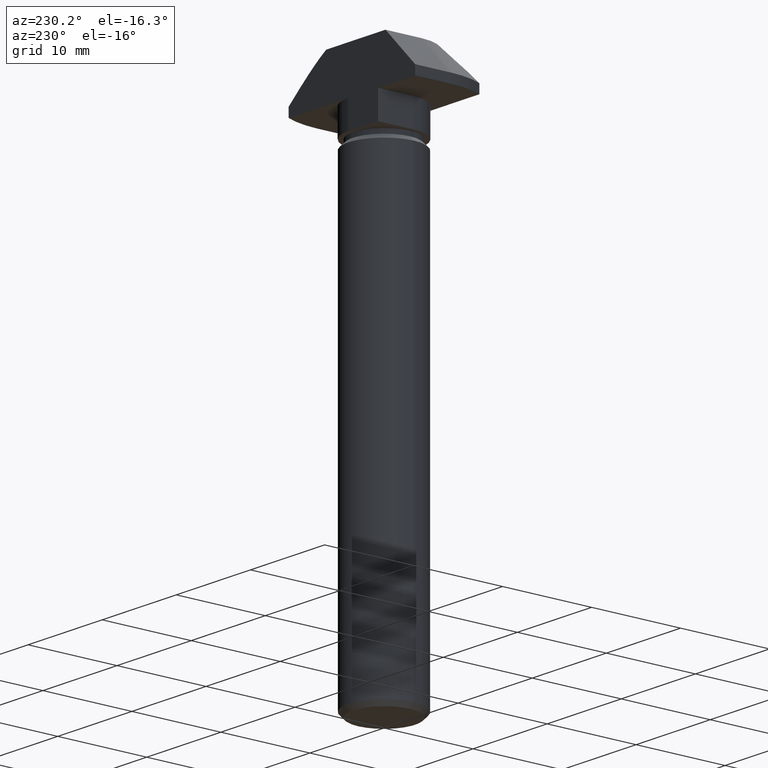
[diagram: clean part render]
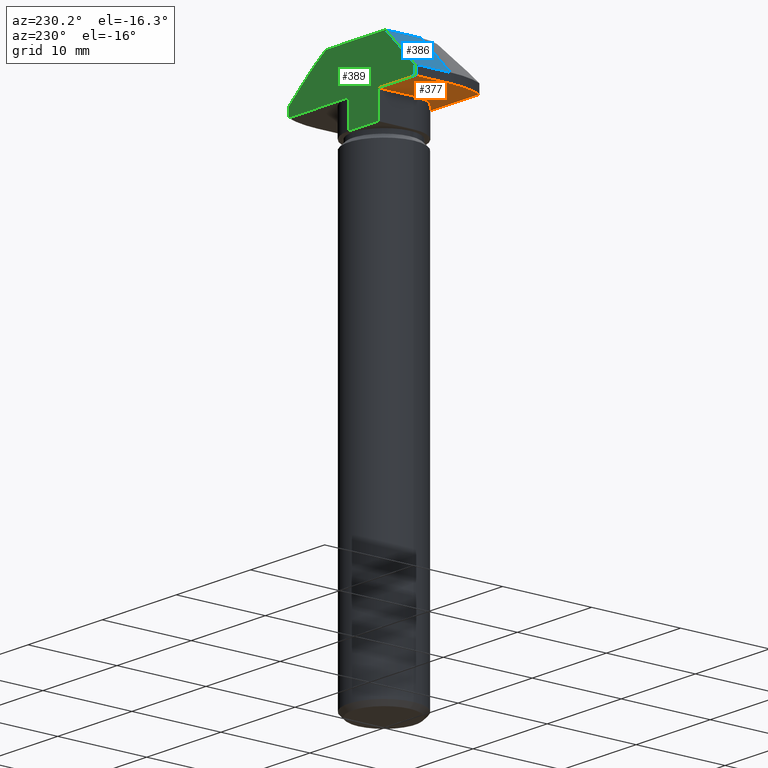
[diagram: same view with three faces highlighted in distinct colors, each labeled with its STEP entity id]
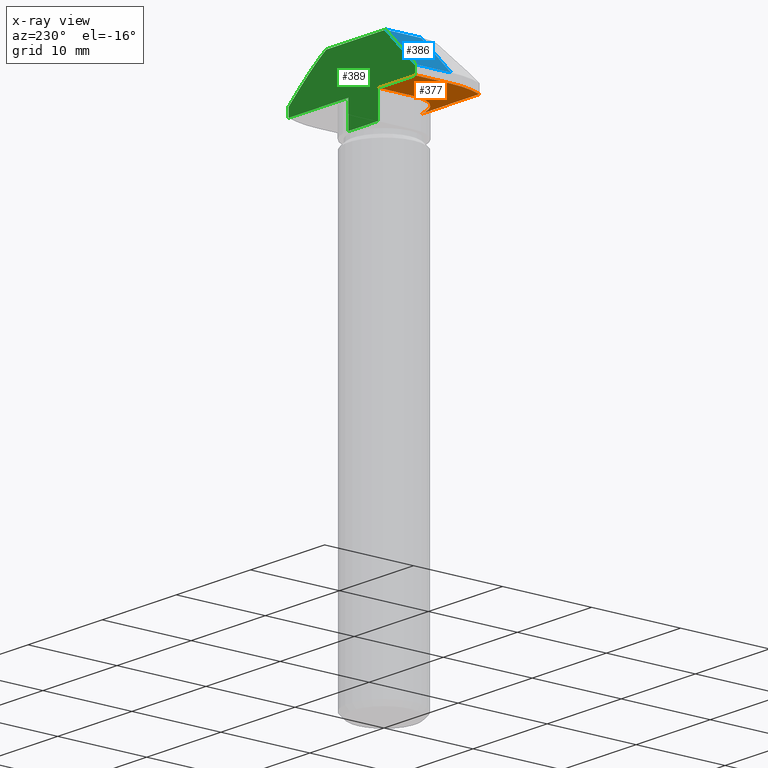
[diagram: x-ray of the same camera — body ghosted, the three highlighted faces saturated]
A machine part, auxiliary view with three faces highlighted in distinct colors.
The next image is the same camera in x-ray (body ghosted, the three faces saturated) — at least one of them is partly hidden behind the body in this view.
Their STEP definitions:

[orange] entity #377 — the highlighted planar face has unit normal (0, 0, -1).
#17=LINE('',#561,#51);
#29=LINE('',#593,#63);
#30=LINE('',#597,#64);
#31=LINE('',#598,#65);
#51=VECTOR('',#454,3.99999999999999);
#63=VECTOR('',#484,8.06225774829855);
#64=VECTOR('',#487,4.);
#65=VECTOR('',#488,5.00000000000001);
#89=PLANE('',#411);
#119=FACE_OUTER_BOUND('',#147,.T.);
#147=EDGE_LOOP('',(#293,#294,#295,#296,#297,#298));
#165=CIRCLE('',#404,4.00000000000001);
#169=CIRCLE('',#412,9.);
#180=VERTEX_POINT('',#559);
#181=VERTEX_POINT('',#560);
#184=VERTEX_POINT('',#568);
#192=VERTEX_POINT('',#592);
#193=VERTEX_POINT('',#594);
#194=VERTEX_POINT('',#596);
#215=EDGE_CURVE('',#180,#181,#17,.T.);
#219=EDGE_CURVE('',#181,#184,#165,.T.);
#231=EDGE_CURVE('',#192,#184,#29,.T.);
#232=EDGE_CURVE('',#192,#193,#169,.T.);
#233=EDGE_CURVE('',#193,#194,#30,.T.);
#234=EDGE_CURVE('',#180,#194,#31,.T.);
#293=ORIENTED_EDGE('',*,*,#219,.T.);
#294=ORIENTED_EDGE('',*,*,#231,.F.);
#295=ORIENTED_EDGE('',*,*,#232,.T.);
#296=ORIENTED_EDGE('',*,*,#233,.T.);
#297=ORIENTED_EDGE('',*,*,#234,.F.);
#298=ORIENTED_EDGE('',*,*,#215,.T.);
#377=ADVANCED_FACE('',(#119),#89,.T.);
#404=AXIS2_PLACEMENT_3D('',#569,#460,#461);
#411=AXIS2_PLACEMENT_3D('',#591,#482,#483);
#412=AXIS2_PLACEMENT_3D('',#595,#485,#486);
#454=DIRECTION('',(0.,-1.,0.));
#460=DIRECTION('center_axis',(0.,0.,1.));
#461=DIRECTION('ref_axis',(2.7755575615629E-16,1.,0.));
#482=DIRECTION('center_axis',(0.,0.,-1.));
#483=DIRECTION('ref_axis',(-1.,0.,0.));
#484=DIRECTION('',(1.,0.,0.));
#485=DIRECTION('center_axis',(0.,0.,-1.));
#486=DIRECTION('ref_axis',(-1.,0.,0.));
#487=DIRECTION('',(0.,1.,0.));
#488=DIRECTION('',(-1.,0.,0.));
#559=CARTESIAN_POINT('',(-3.99999999999999,3.99999999999998,-5.));
#560=CARTESIAN_POINT('',(-3.99999999999999,-1.4432899320127E-14,-5.));
#561=CARTESIAN_POINT('',(-3.99999999999999,-7.21644966006352E-15,-5.));
#568=CARTESIAN_POINT('',(0.,-4.00000000000001,-5.));
#569=CARTESIAN_POINT('Origin',(1.11022302462516E-15,-1.33226762955019E-14,
-5.));
#591=CARTESIAN_POINT('Origin',(9.,0.,-5.));
#592=CARTESIAN_POINT('',(-8.06225774829855,-4.,-5.));
#593=CARTESIAN_POINT('',(-9.,-4.,-5.));
#594=CARTESIAN_POINT('',(-9.,0.,-5.));
#595=CARTESIAN_POINT('Origin',(0.,0.,-5.));
#596=CARTESIAN_POINT('',(-9.,4.,-5.));
#597=CARTESIAN_POINT('',(-9.,0.,-5.));
#598=CARTESIAN_POINT('',(-9.,4.,-5.));

[blue] entity #386 — the highlighted planar face has unit normal (-0.7071, 0, 0.7071).
#40=LINE('',#634,#74);
#45=LINE('',#645,#79);
#47=LINE('',#649,#81);
#48=LINE('',#650,#82);
#74=VECTOR('',#517,5.65685424949238);
#79=VECTOR('',#528,4.);
#81=VECTOR('',#532,4.);
#82=VECTOR('',#533,5.65685424949238);
#94=PLANE('',#426);
#128=FACE_OUTER_BOUND('',#156,.T.);
#156=EDGE_LOOP('',(#333,#334,#335,#336));
#203=VERTEX_POINT('',#624);
#205=VERTEX_POINT('',#632);
#208=VERTEX_POINT('',#644);
#209=VERTEX_POINT('',#648);
#250=EDGE_CURVE('',#205,#203,#40,.T.);
#255=EDGE_CURVE('',#208,#203,#45,.T.);
#257=EDGE_CURVE('',#209,#205,#47,.T.);
#258=EDGE_CURVE('',#208,#209,#48,.T.);
#333=ORIENTED_EDGE('',*,*,#250,.F.);
#334=ORIENTED_EDGE('',*,*,#257,.F.);
#335=ORIENTED_EDGE('',*,*,#258,.F.);
#336=ORIENTED_EDGE('',*,*,#255,.T.);
#386=ADVANCED_FACE('',(#128),#94,.T.);
#426=AXIS2_PLACEMENT_3D('',#647,#530,#531);
#517=DIRECTION('',(-0.707106781186547,0.,-0.707106781186547));
#528=DIRECTION('',(0.,-1.,0.));
#530=DIRECTION('center_axis',(-0.707106781186548,0.,0.707106781186548));
#531=DIRECTION('ref_axis',(0.707106781186548,0.,0.707106781186548));
#532=DIRECTION('',(0.,-1.,0.));
#533=DIRECTION('',(0.707106781186548,0.,0.707106781186548));
#624=CARTESIAN_POINT('',(-9.,0.,-4.));
#632=CARTESIAN_POINT('',(-5.,0.,0.));
#634=CARTESIAN_POINT('',(-7.,0.,-2.));
#644=CARTESIAN_POINT('',(-9.,4.,-4.));
#645=CARTESIAN_POINT('',(-9.,0.,-4.));
#647=CARTESIAN_POINT('Origin',(-9.,0.,-4.));
#648=CARTESIAN_POINT('',(-5.,4.,0.));
#649=CARTESIAN_POINT('',(-5.,0.,4.00551059515339E-16));
#650=CARTESIAN_POINT('',(-5.,4.,4.00551059515339E-16));

[green] entity #389 — the highlighted planar face has unit normal (0, 1, 0).
#15=(
BOUNDED_CURVE()
B_SPLINE_CURVE(2,(#610,#611,#612),.UNSPECIFIED.,.F.,.F.)
B_SPLINE_CURVE_WITH_KNOTS((3,3),(0.,0.645810133031387),.UNSPECIFIED.)
CURVE()
GEOMETRIC_REPRESENTATION_ITEM()
RATIONAL_B_SPLINE_CURVE((1.,1.07257323111151,1.))
REPRESENTATION_ITEM('')
);
#18=LINE('',#563,#52);
#26=LINE('',#587,#60);
#27=LINE('',#589,#61);
#31=LINE('',#598,#65);
#32=LINE('',#601,#66);
#36=LINE('',#619,#70);
#46=LINE('',#646,#80);
#48=LINE('',#650,#82);
#50=LINE('',#654,#84);
#52=VECTOR('',#455,3.);
#60=VECTOR('',#477,3.);
#61=VECTOR('',#480,3.99999999999999);
#65=VECTOR('',#488,5.00000000000001);
#66=VECTOR('',#491,8.06225774829855);
#70=VECTOR('',#505,1.);
#80=VECTOR('',#529,1.);
#82=VECTOR('',#533,5.65685424949238);
#84=VECTOR('',#539,8.00000000000001);
#97=PLANE('',#429);
#131=FACE_OUTER_BOUND('',#159,.T.);
#159=EDGE_LOOP('',(#353,#354,#355,#356,#357,#358,#359,#360,#361,#362));
#180=VERTEX_POINT('',#559);
#182=VERTEX_POINT('',#562);
#190=VERTEX_POINT('',#583);
#191=VERTEX_POINT('',#585);
#194=VERTEX_POINT('',#596);
#195=VERTEX_POINT('',#600);
#198=VERTEX_POINT('',#608);
#199=VERTEX_POINT('',#609);
#208=VERTEX_POINT('',#644);
#209=VERTEX_POINT('',#648);
#216=EDGE_CURVE('',#180,#182,#18,.T.);
#228=EDGE_CURVE('',#190,#191,#26,.T.);
#229=EDGE_CURVE('',#182,#191,#27,.T.);
#234=EDGE_CURVE('',#180,#194,#31,.T.);
#235=EDGE_CURVE('',#195,#190,#32,.T.);
#239=EDGE_CURVE('',#198,#199,#15,.T.);
#243=EDGE_CURVE('',#199,#195,#36,.T.);
#256=EDGE_CURVE('',#194,#208,#46,.T.);
#258=EDGE_CURVE('',#208,#209,#48,.T.);
#260=EDGE_CURVE('',#209,#198,#50,.T.);
#353=ORIENTED_EDGE('',*,*,#243,.T.);
#354=ORIENTED_EDGE('',*,*,#235,.T.);
#355=ORIENTED_EDGE('',*,*,#228,.T.);
#356=ORIENTED_EDGE('',*,*,#229,.F.);
#357=ORIENTED_EDGE('',*,*,#216,.F.);
#358=ORIENTED_EDGE('',*,*,#234,.T.);
#359=ORIENTED_EDGE('',*,*,#256,.T.);
#360=ORIENTED_EDGE('',*,*,#258,.T.);
#361=ORIENTED_EDGE('',*,*,#260,.T.);
#362=ORIENTED_EDGE('',*,*,#239,.T.);
#389=ADVANCED_FACE('',(#131),#97,.T.);
#429=AXIS2_PLACEMENT_3D('',#655,#540,#541);
#455=DIRECTION('',(0.,0.,-1.));
#477=DIRECTION('',(0.,0.,-1.));
#480=DIRECTION('',(1.,0.,0.));
#488=DIRECTION('',(-1.,0.,0.));
#491=DIRECTION('',(-1.,0.,0.));
#505=DIRECTION('',(0.,0.,-1.));
#529=DIRECTION('',(0.,0.,1.));
#533=DIRECTION('',(0.707106781186548,0.,0.707106781186548));
#539=DIRECTION('',(1.,0.,-2.04289535270664E-17));
#540=DIRECTION('center_axis',(0.,1.,0.));
#541=DIRECTION('ref_axis',(0.,0.,1.));
#559=CARTESIAN_POINT('',(-3.99999999999999,3.99999999999998,-5.));
#562=CARTESIAN_POINT('',(-3.99999999999999,3.99999999999998,-8.));
#563=CARTESIAN_POINT('',(-3.99999999999999,3.99999999999998,-5.));
#583=CARTESIAN_POINT('',(0.,3.99999999999998,-5.));
#585=CARTESIAN_POINT('',(0.,3.99999999999998,-8.));
#587=CARTESIAN_POINT('',(0.,3.99999999999998,-5.));
#589=CARTESIAN_POINT('',(0.,3.99999999999998,-8.));
#596=CARTESIAN_POINT('',(-9.,4.,-5.));
#598=CARTESIAN_POINT('',(-9.,4.,-5.));
#600=CARTESIAN_POINT('',(8.06225774829855,4.,-5.));
#601=CARTESIAN_POINT('',(-9.,4.,-5.));
#608=CARTESIAN_POINT('',(3.,4.,0.));
#609=CARTESIAN_POINT('',(8.06225774829855,4.,-4.));
#610=CARTESIAN_POINT('Ctrl Pts',(3.,4.,-2.77555756156289E-16));
#611=CARTESIAN_POINT('Ctrl Pts',(4.80794919582092,4.,-1.08476951749255));
#612=CARTESIAN_POINT('Ctrl Pts',(8.06225774829855,4.,-4.));
#619=CARTESIAN_POINT('',(8.06225774829855,4.,-4.5));
#644=CARTESIAN_POINT('',(-9.,4.,-4.));
#646=CARTESIAN_POINT('',(-9.,4.,-4.));
#648=CARTESIAN_POINT('',(-5.,4.,0.));
#650=CARTESIAN_POINT('',(-5.,4.,4.00551059515339E-16));
#654=CARTESIAN_POINT('',(5.,4.,1.96261524244674E-16));
#655=CARTESIAN_POINT('Origin',(0.,4.,-2.94399659137253));